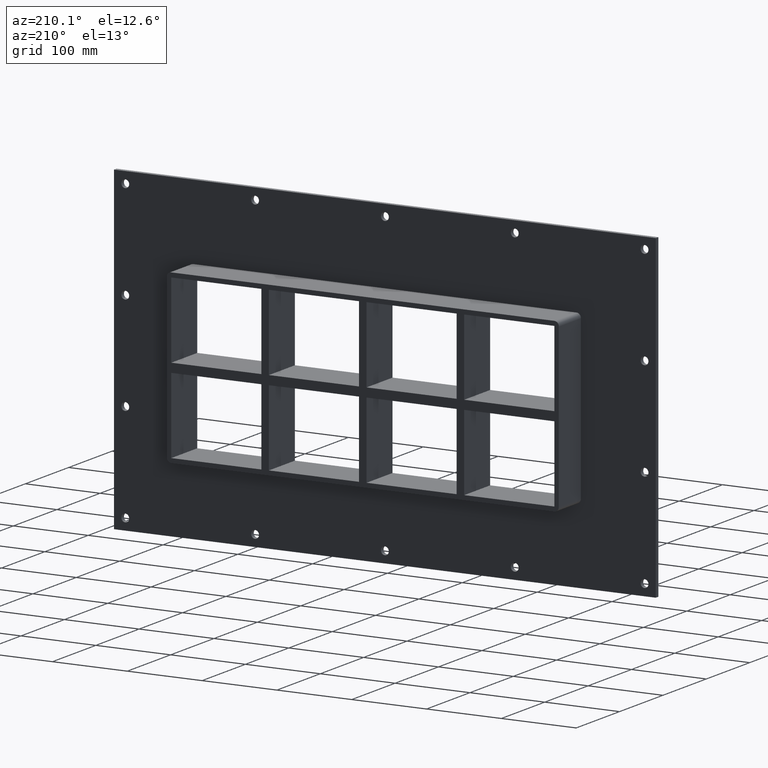
[diagram: clean part render]
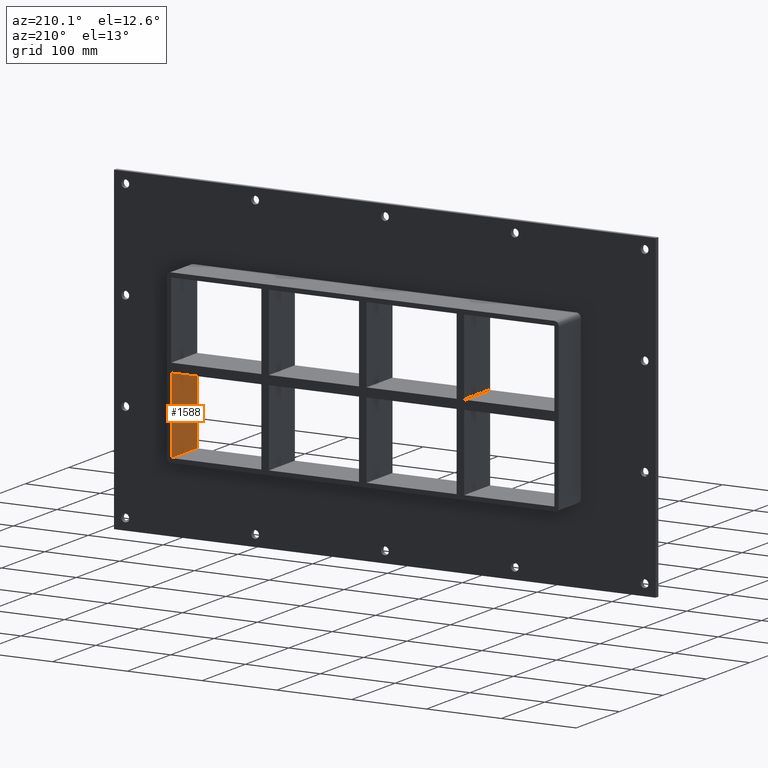
[diagram: same view with one face highlighted and labeled with its STEP entity id]
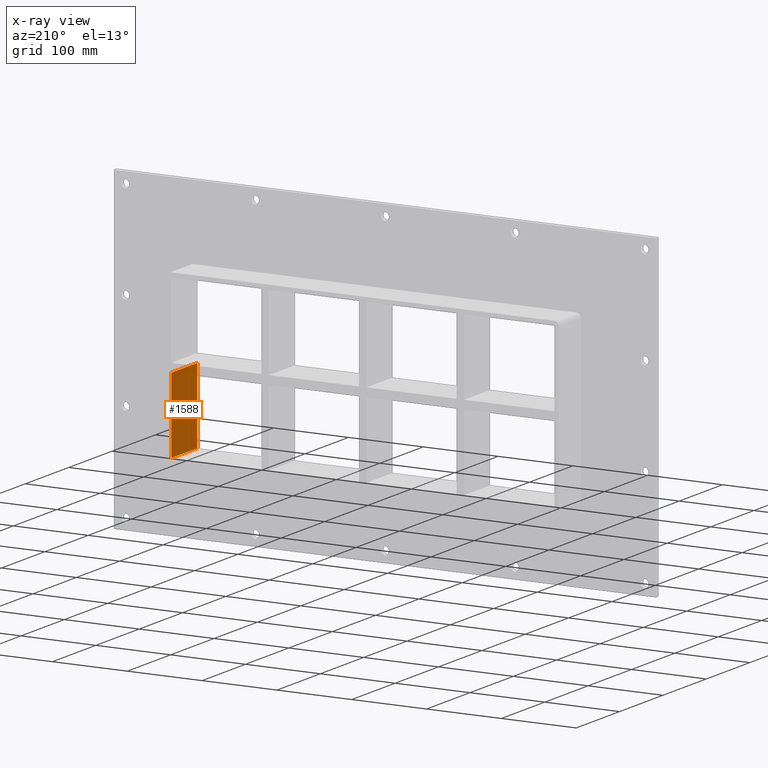
[diagram: x-ray of the same camera — body ghosted, the highlighted face saturated]
A machine part, auxiliary view. The second image highlights one B-rep face of the part: STEP entity #1588.
The next image is the same camera in x-ray: the body ghosted, the highlighted face saturated — about 0% of this face is hidden behind the body in this view.
In plain terms, the highlighted planar face has unit normal (1, 0, 0).
Its self-contained STEP definition (entity closure, byte-faithful):
#839=CARTESIAN_POINT('',(256.00000000000006,-3.0,-107.00000000000003));
#840=VERTEX_POINT('',#839);
#847=CARTESIAN_POINT('',(256.00000000000006,57.0,-107.00000000000003));
#848=VERTEX_POINT('',#847);
#849=CARTESIAN_POINT('',(256.00000000000006,56.999999999999993,-107.00000000000003));
#850=DIRECTION('',(0.0,-1.0,0.0));
#851=VECTOR('',#850,59.999999999999993);
#852=LINE('',#849,#851);
#853=EDGE_CURVE('',#848,#840,#852,.T.);
#1035=CARTESIAN_POINT('',(256.00000000000364,-3.0,-6.000000000010886));
#1036=VERTEX_POINT('',#1035);
#1043=CARTESIAN_POINT('',(256.00000000000006,-3.0,-6.000000000010886));
#1044=DIRECTION('',(0.0,0.0,-1.0));
#1045=VECTOR('',#1044,100.99999999998914);
#1046=LINE('',#1043,#1045);
#1047=EDGE_CURVE('',#1036,#840,#1046,.T.);
#1127=CARTESIAN_POINT('',(256.00000000000364,57.0,-6.000000000010886));
#1128=VERTEX_POINT('',#1127);
#1135=CARTESIAN_POINT('',(256.00000000000006,-3.0,-6.000000000010886));
#1136=DIRECTION('',(0.0,1.0,0.0));
#1137=VECTOR('',#1136,60.000000000000007);
#1138=LINE('',#1135,#1137);
#1139=EDGE_CURVE('',#1036,#1128,#1138,.T.);
#1245=CARTESIAN_POINT('',(256.00000000000006,57.0,-107.00000000000003));
#1246=DIRECTION('',(0.0,0.0,1.0));
#1247=VECTOR('',#1246,100.99999999998914);
#1248=LINE('',#1245,#1247);
#1249=EDGE_CURVE('',#848,#1128,#1248,.T.);
#1577=CARTESIAN_POINT('',(256.00000000000006,0.0,106.99999999999996));
#1578=DIRECTION('',(1.0,0.0,0.0));
#1579=DIRECTION('',(0.0,0.0,-1.0));
#1580=AXIS2_PLACEMENT_3D('',#1577,#1578,#1579);
#1581=PLANE('',#1580);
#1582=ORIENTED_EDGE('',*,*,#1139,.T.);
#1583=ORIENTED_EDGE('',*,*,#1249,.F.);
#1584=ORIENTED_EDGE('',*,*,#853,.T.);
#1585=ORIENTED_EDGE('',*,*,#1047,.F.);
#1586=EDGE_LOOP('',(#1582,#1583,#1584,#1585));
#1587=FACE_OUTER_BOUND('',#1586,.T.);
#1588=ADVANCED_FACE('',(#1587),#1581,.F.);